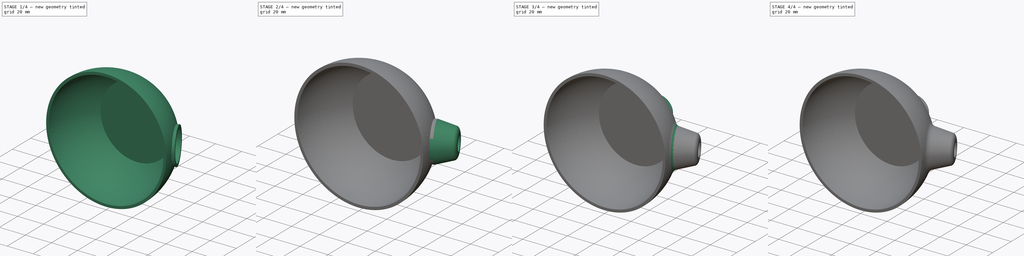
[diagram: build sequence overview — one tinted view per stage of 4, left to right]
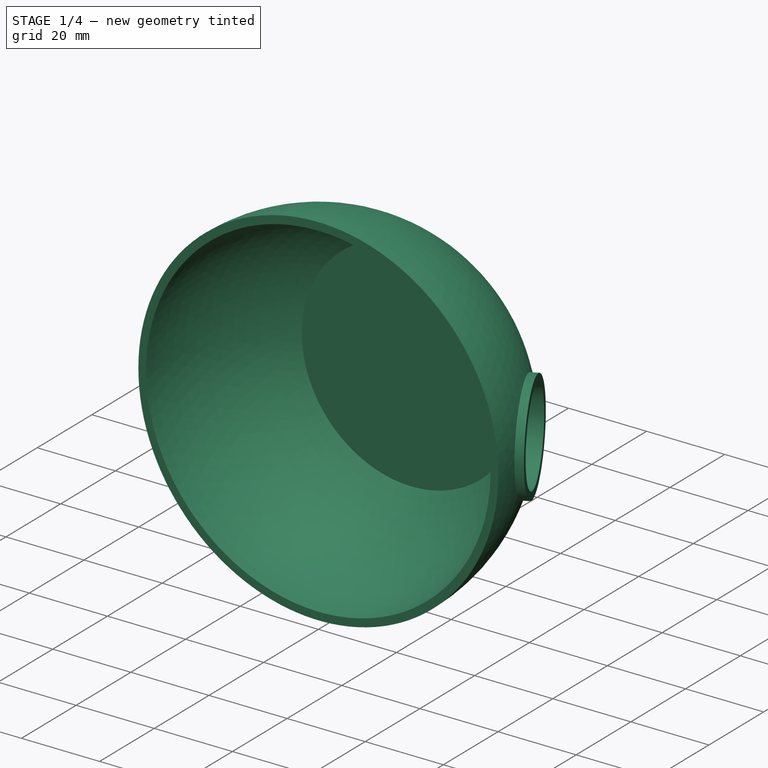
[diagram: stage 1 of 4 — iso view after this stage's code; geometry added in this stage tinted green]
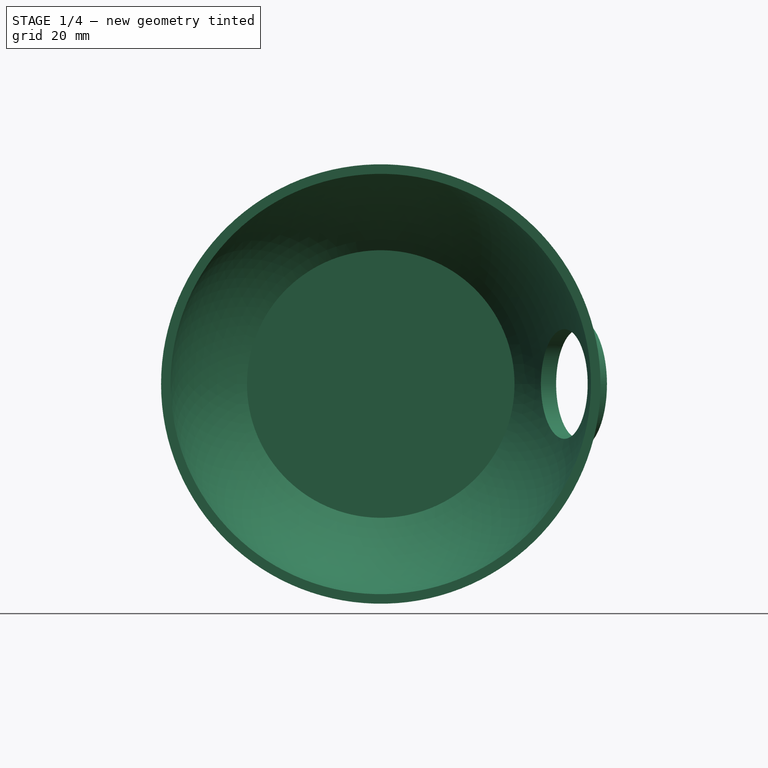
[diagram: stage 1 of 4 — front view after this stage's code; geometry added in this stage tinted green]
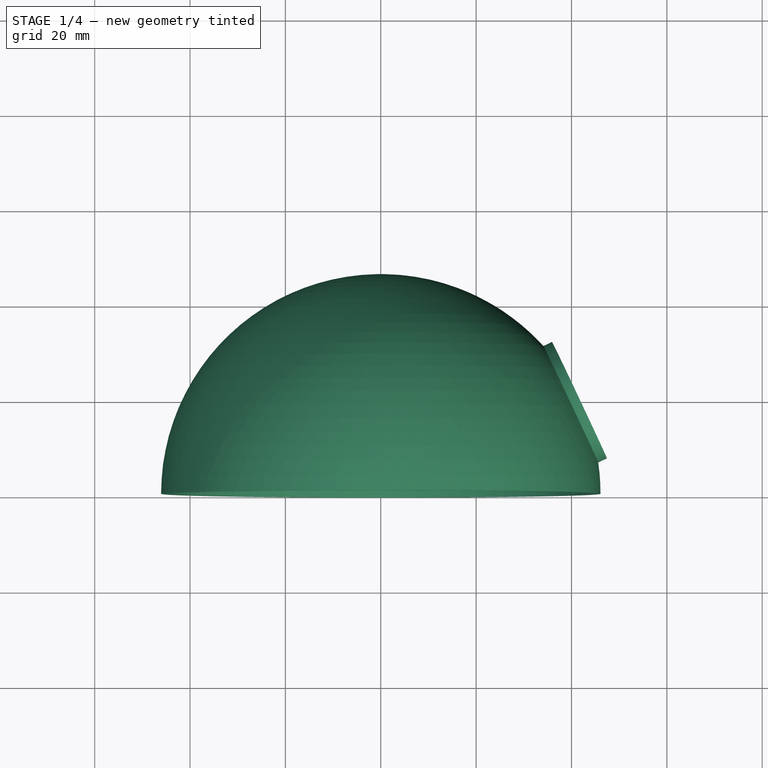
[diagram: stage 1 of 4 — top view after this stage's code; geometry added in this stage tinted green]
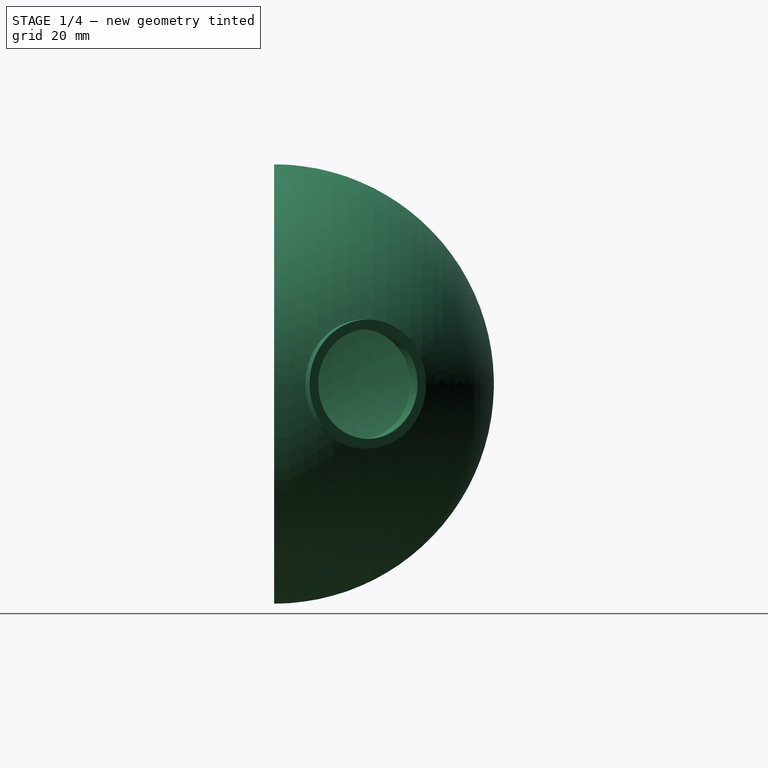
[diagram: stage 1 of 4 — right view after this stage's code; geometry added in this stage tinted green]
FCSTD DOCUMENT  (FreeCAD 0.19R24291 (Git))
Label: Vacuum_holder2
License: All rights reserved
LicenseURL: http://en.wikipedia.org/wiki/All_rights_reserved
objects: Sketcher::SketchObject×11, PartDesign::Plane×4, PartDesign::Pocket×4, PartDesign::Fillet×4, PartDesign::Revolution×3, PartDesign::Line×2, PartDesign::Pad×2, PartDesign::Point×1, PartDesign::Body×1
note: 45 computed .brp shape members not serialized (recipe doc carries the construction recipe); baked Part::Feature solids carry a one-line shape summary decoded from their .brp

FEATURE [Sketcher::SketchObject] Sketch
  FullyConstrained = true
  MapMode = 5
  Support = -> [XY_Plane]
  sketch-geometry (6):
    g0: ArcOfCircle CenterX=0 CenterY=0 CenterZ=0 NormalX=0 NormalY=0 NormalZ=1 AngleXU=0 Radius=44.08 StartAngle=0 EndAngle=0.88092
    g1: ArcOfCircle CenterX=0 CenterY=0 CenterZ=0 NormalX=0 NormalY=0 NormalZ=1 AngleXU=0 Radius=46.08 StartAngle=0 EndAngle=1.54909
    g2: LineSegment StartX=1 StartY=46.0691 StartZ=0 EndX=0 EndY=46.0691 EndZ=0
    g3: LineSegment StartX=28.0543 StartY=34 StartZ=0 EndX=0 EndY=34 EndZ=0
    g4: LineSegment StartX=0 StartY=34 StartZ=0 EndX=0 EndY=46.0691 EndZ=0
    g5: LineSegment StartX=44.08 StartY=0 StartZ=0 EndX=46.08 EndY=0 EndZ=0
  constraints (18):
    c: Coincident(g0,g-1)
    c: PointOnObject(g0,g-1)
    c: Coincident(g1,g0)
    c: PointOnObject(g1,g-1)
    c: Coincident(g2,g1)
    c: PointOnObject(g2,g-2)
    c: Horizontal(g2)
    c: Coincident(g3,g0)
    c: PointOnObject(g3,g-2)
    c: Horizontal(g3)
    c: Coincident(g4,g2)
    c: Coincident(g5,g0)
    c: Coincident(g5,g1)
    c: Diameter(g0) = 88.16
    c: Distance(g5) = 2
    c: Coincident(g4,g3)
    c: Distance(g3,g0) = 34
    c: Distance(g2) = 1
FEATURE [PartDesign::Revolution] Revolution
  Angle = 360
  Axis = (0,1,0)
  Base = (0,0,0)
  Profile = -> Sketch
  ReferenceAxis = -> Sketch [V_Axis]
  Reversed = true
FEATURE [PartDesign::Line] DatumLine
  AttacherType = Attacher::AttachEngineLine
  Length = 20
  MapMode = 43
  Placement = pos=(7.1e-15,-1.07e-14,0) rot=(0.409171,0.645205,0.645205;2.36482rad)
  ResizeMode = 0
  Support = -> [Revolution]
FEATURE [PartDesign::Point] DatumPoint
  AttacherType = Attacher::AttachEnginePoint
  MapMode = 40
  Placement = pos=(41.6819,19.6465,9e-15) rot=(0,0,1;0rad)
  Support = -> [DatumLine,Revolution]
FEATURE [PartDesign::Plane] DatumPlane
  Length = 123.023
  MapMode = 7
  Placement = pos=(41.6819,19.6465,9e-15) rot=(0.409171,0.645205,0.645205;2.36482rad)
  ResizeMode = 0
  Support = -> [DatumLine,DatumPoint]
  Width = 111.59
FEATURE [Sketcher::SketchObject] Sketch001
  FullyConstrained = true
  MapMode = 5
  Placement = pos=(41.6819,19.6465,9e-15) rot=(0.409171,0.645205,0.645205;2.36482rad)
  Support = -> [DatumPlane]
  sketch-geometry (2):
    g0: Circle CenterX=0 CenterY=0 CenterZ=0 NormalX=0 NormalY=0 NormalZ=1 AngleXU=0 Radius=11.5
    g1: Circle CenterX=0 CenterY=0 CenterZ=0 NormalX=0 NormalY=0 NormalZ=1 AngleXU=0 Radius=13.5
  constraints (4):
    c: Coincident(g0,g-1)
    c: Diameter(g0) = 23
    c: Coincident(g1,g0)
    c: Diameter(g1) = 27
FEATURE [Sketcher::SketchObject] Sketch002
  FullyConstrained = true
  MapMode = 5
  Placement = pos=(41.6819,19.6465,9e-15) rot=(0.409171,0.645205,0.645205;2.36482rad)
  Support = -> [DatumPlane]
  sketch-geometry (1):
    g0: Circle CenterX=0 CenterY=0 CenterZ=0 NormalX=0 NormalY=0 NormalZ=1 AngleXU=0 Radius=11.5
  constraints (2):
    c: Coincident(g0,g-1)
    c: Diameter(g0) = 23
FEATURE [PartDesign::Pocket] Pocket
  BaseFeature = -> Revolution
  Length = 0
  Length2 = 100
  Profile = -> Sketch002
  Type = 3
  UpToFace = -> Revolution [Face1]
FEATURE [PartDesign::Pad] Pad
  BaseFeature = -> Pocket
  Direction = (1,1,1)
  Length = 10
  Length2 = 100
  Profile = -> Sketch001
  Type = 3
  UpToFace = -> Pocket [Face5]
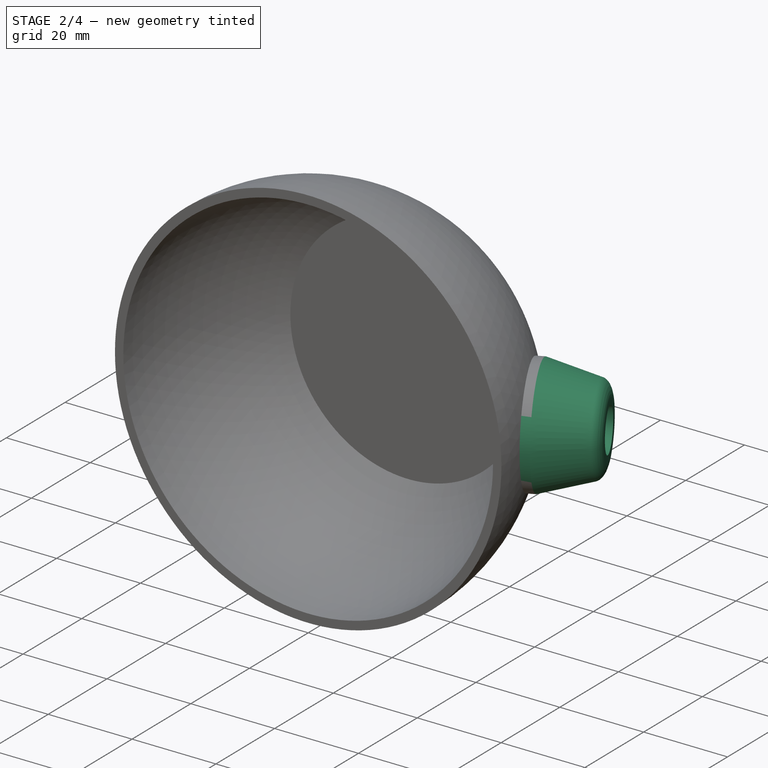
[diagram: stage 2 of 4 — iso view after this stage's code; geometry added in this stage tinted green]
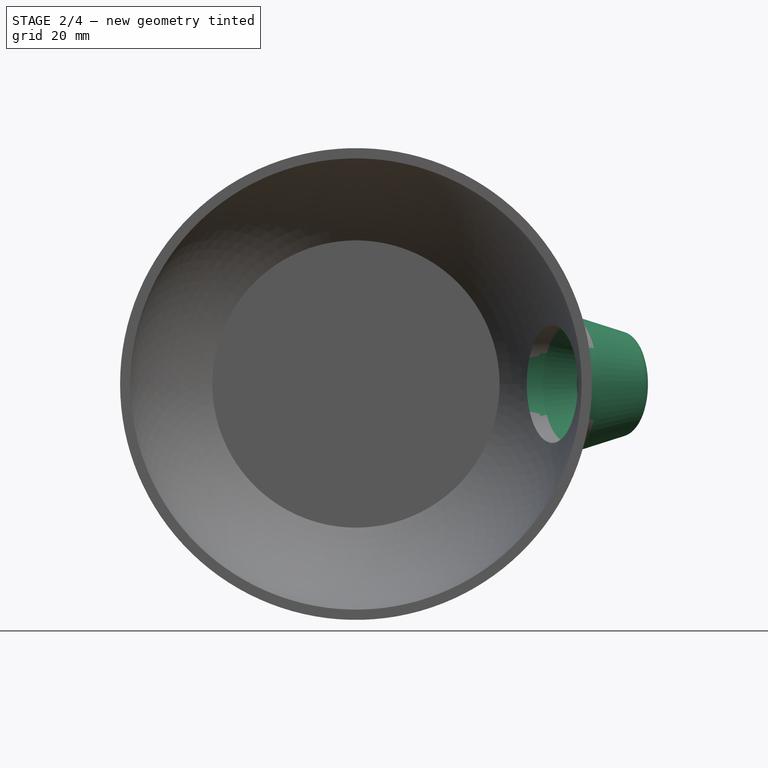
[diagram: stage 2 of 4 — front view after this stage's code; geometry added in this stage tinted green]
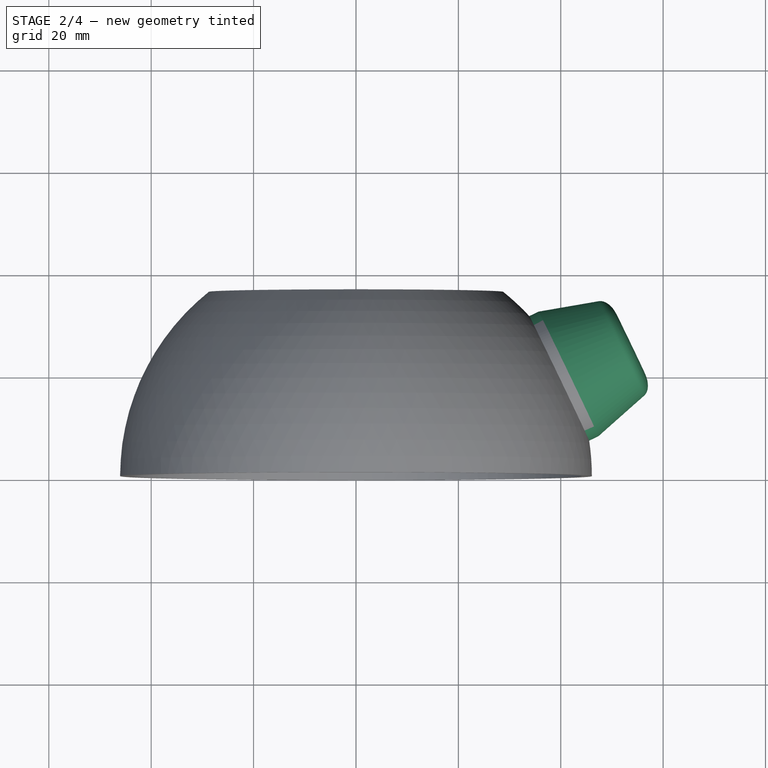
[diagram: stage 2 of 4 — top view after this stage's code; geometry added in this stage tinted green]
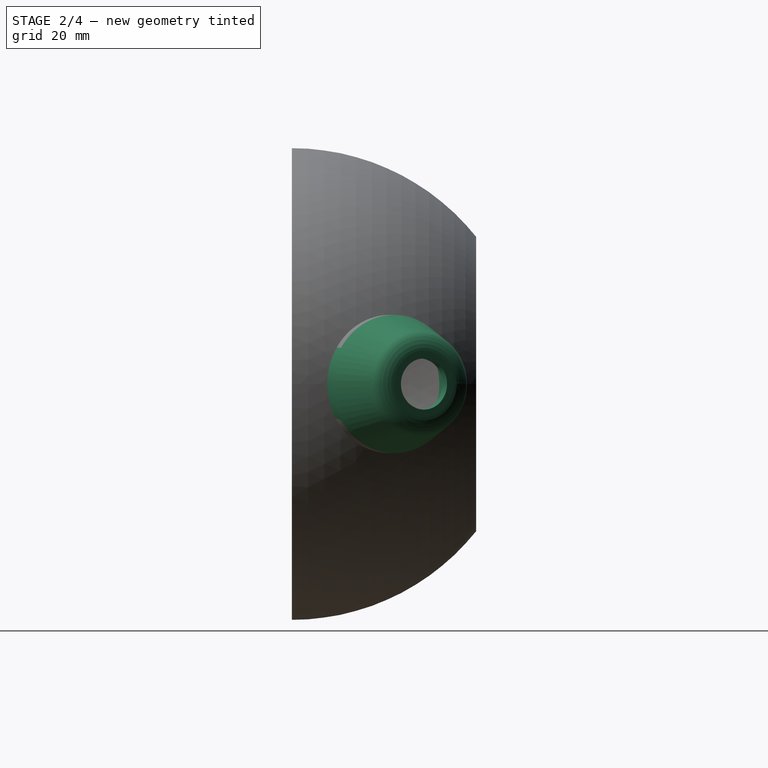
[diagram: stage 2 of 4 — right view after this stage's code; geometry added in this stage tinted green]
FEATURE [Sketcher::SketchObject] Sketch003
  ExternalGeometry = -> [Pad,DatumLine]
  FullyConstrained = false
  MapMode = 5
  Support = -> [XY_Plane]
  sketch-geometry (22):
    g0: LineSegment StartX=46.08 StartY=0 StartZ=0 EndX=30.8057 EndY=43.66 EndZ=0
    g1: LineSegment StartX=30.8057 StartY=43.66 StartZ=0 EndX=37.562 EndY=36.7555 EndZ=0
    g2: LineSegment StartX=37.562 StartY=36.7555 StartZ=0 EndX=42.5651 EndY=41.6512 EndZ=0
    g3: LineSegment StartX=42.5651 StartY=41.6512 StartZ=0 EndX=38.0191 EndY=46.297 EndZ=0
    g4: LineSegment StartX=11.5411 StartY=70.4964 StartZ=0 EndX=22.0482 EndY=40.4629 EndZ=0
    g5: LineSegment StartX=43.6354 StartY=30.5818 StartZ=0 EndX=45.9452 EndY=38.9284 EndZ=0
    g6: LineSegment StartX=45.9452 StartY=38.9284 StartZ=0 EndX=39.8718 EndY=45.102 EndZ=0
    g7: LineSegment StartX=39.8718 StartY=45.102 StartZ=0 EndX=31.4885 EndY=42.9291 EndZ=0
    g8: LineSegment StartX=31.4885 StartY=42.9291 StartZ=0 EndX=29.1787 EndY=34.5825 EndZ=0
    g9: LineSegment StartX=29.1787 StartY=34.5825 StartZ=0 EndX=35.2522 EndY=28.4089 EndZ=0
    g10: LineSegment StartX=35.2522 StartY=28.4089 StartZ=0 EndX=43.6354 EndY=30.5818 EndZ=0
    g11: Circle CenterX=37.562 CenterY=36.7555 CenterZ=0 NormalX=0 NormalY=0 NormalZ=1 AngleXU=0 Radius=8.66025
    g12: GeomPoint X=31.505 Y=42.9453 Z=0
    g13: LineSegment StartX=46.08 StartY=0 StartZ=0 EndX=22.0482 EndY=40.4629 EndZ=0
    g14: LineSegment StartX=42.5651 StartY=41.6512 StartZ=0 EndX=41.1357 EndY=40.2524 EndZ=0
    g15: LineSegment StartX=41.1357 StartY=40.2524 StartZ=0 EndX=37.6387 EndY=43.8261 EndZ=0
    g16: ArcOfEllipse CenterX=36.7272 CenterY=45.0329 CenterZ=0 NormalX=0 NormalY=0 NormalZ=1 MajorRadius=36.0197 MinorRadius=1.80745 AngleXU=2.34534 StartAngle=4.71239 EndAngle=6.38992
    g17: LineSegment StartX=11.5353 StartY=70.7776 StartZ=0 EndX=61.9191 EndY=19.2883 EndZ=0
    g18: LineSegment StartX=35.4354 StartY=43.7688 StartZ=0 EndX=38.0191 EndY=46.297 EndZ=0
    g19: GeomPoint X=11.5671 Y=70.7451 Z=0
    g20: GeomPoint X=61.8873 Y=19.3207 Z=0
    g21: LineSegment StartX=26.2671 StartY=34 StartZ=0 EndX=38.4576 EndY=21.5421 EndZ=0
  constraints (49):
    c: Coincident(g0,g-3)
    c: Coincident(g1,g0)
    c: PointOnObject(g1,g-5)
    c: PointOnObject(g2,g-5)
    c: Coincident(g4,g-4)
    c: Coincident(g1,g2)
    c: Distance(g2) = 7
    c: Coincident(g3,g2)
    c: Perpendicular(g2,g1)
    c: Perpendicular(g2,g3)
    c: Coincident(g5,g6)
    c: Coincident(g6,g7)
    c: Coincident(g7,g8)
    c: Coincident(g8,g9)
    c: Coincident(g9,g10)
    c: Coincident(g10,g5)
    c: Equal(g5, g6-g10) x5
    c: PointOnObject(g5,g11)
    c: PointOnObject(g6,g11)
    c: PointOnObject(g7,g11)
    c: PointOnObject(g8,g11)
    c: PointOnObject(g9,g11)
    c: PointOnObject(g10,g11)
    c: Coincident(g11,g1)
    c: Distance(g5,g8) = 15
    c: PointOnObject(g12,g11)
    c: PointOnObject(g12,g1)
    c: Distance(g0,g12) = 1
    c: Parallel(g0,g4)
    c: Distance(g3) = 6.5
    c: Coincident(g13,g0)
    c: Coincident(g13,g4)
    c: Distance(g0,g4) = 9.32195
    c: Coincident(g14,g2)
    c: PointOnObject(g14,g2)
    c: Distance(g2,g14) = 2
    c: Coincident(g15,g14)
    c: Perpendicular(g2,g15)
    c: Distance(g15) = 5
    c: PointOnObject(g4,g15)
    c: InternalAlignment(g17-g20 -> g16) x4
    c: Coincident(g16,g4)
    c: Coincident(g16,g3)
    c: Tangent(g4,g16)
    c: Tangent(g16,g3)
    c: Parallel(g17,g15)
    c: Coincident(g21,g-6)
    c: Coincident(g21,g-7)
    c: Distance(g14,g21) = 15
FEATURE [PartDesign::Revolution] Revolution001
  Angle = 360
  Axis = (0.714738,0.699392,0)
  Base = (0,-7.1e-15,0)
  BaseFeature = -> Pad
  Profile = -> Sketch003
  ReferenceAxis = -> DatumLine
  Reversed = true
FEATURE [Sketcher::SketchObject] Sketch004
  FullyConstrained = true
  MapMode = 5
  Placement = pos=(47.3596,22.78,0) rot=(0.747342,-0.469829,-0.469829;1.858rad)
  Support = -> [Revolution001]
  sketch-geometry (7):
    g0: LineSegment StartX=4.33013 StartY=7.5 StartZ=0 EndX=-4.33013 EndY=7.5 EndZ=0
    g1: LineSegment StartX=-4.33013 StartY=7.5 StartZ=0 EndX=-8.66025 EndY=-9e-16 EndZ=0
    g2: LineSegment StartX=-8.66025 StartY=-9e-16 StartZ=0 EndX=-4.33013 EndY=-7.5 EndZ=0
    g3: LineSegment StartX=-4.33013 StartY=-7.5 StartZ=0 EndX=4.33013 EndY=-7.5 EndZ=0
    g4: LineSegment StartX=4.33013 StartY=-7.5 StartZ=0 EndX=8.66025 EndY=1.8e-15 EndZ=0
    g5: LineSegment StartX=8.66025 StartY=1.8e-15 StartZ=0 EndX=4.33013 EndY=7.5 EndZ=0
    g6: Circle CenterX=0 CenterY=0 CenterZ=0 NormalX=0 NormalY=0 NormalZ=1 AngleXU=0 Radius=8.66025
  constraints (16):
    c: Coincident(g0,g1)
    c: Coincident(g1,g2)
    c: Coincident(g2,g3)
    c: Coincident(g3,g4)
    c: Coincident(g4,g5)
    c: Coincident(g5,g0)
    c: Equal(g0, g1-g5) x5
    c: PointOnObject(g0,g6)
    c: PointOnObject(g1,g6)
    c: PointOnObject(g2,g6)
    c: PointOnObject(g3,g6)
    c: PointOnObject(g4,g6)
    c: PointOnObject(g5,g6)
    c: Coincident(g6,g-1)
    c: Horizontal(g0)
    c: Distance(g3,g0) = 15
FEATURE [PartDesign::Pocket] Pocket001
  BaseFeature = -> Revolution001
  Length = 5
  Length2 = 100
  Profile = -> Sketch004
  Type = 0
FEATURE [Sketcher::SketchObject] Sketch005
  FullyConstrained = true
  MapMode = 5
  Placement = pos=(51.8655,24.9473,-1e-16) rot=(0.747342,-0.469829,-0.469829;1.858rad)
  Support = -> [Pocket001]
  sketch-geometry (1):
    g0: Circle CenterX=0 CenterY=0 CenterZ=0 NormalX=0 NormalY=0 NormalZ=1 AngleXU=0 Radius=5
  constraints (2):
    c: Coincident(g0,g-1)
    c: Diameter(g0) = 10
FEATURE [PartDesign::Pocket] Pocket002
  BaseFeature = -> Pocket001
  Length = 0
  Length2 = 100
  Profile = -> Sketch005
  Type = 3
  UpToFace = -> Pocket001 [Face18]
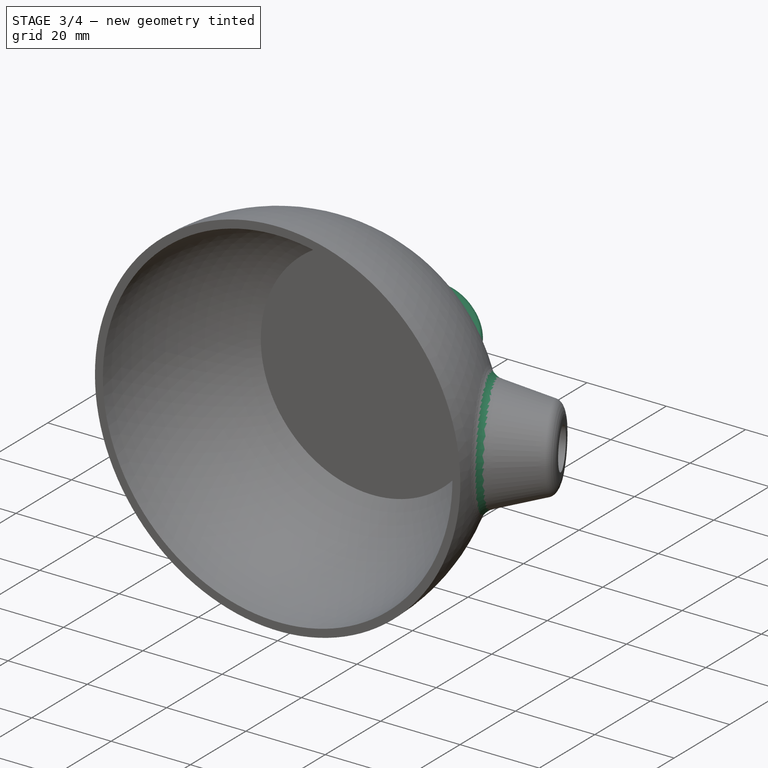
[diagram: stage 3 of 4 — iso view after this stage's code; geometry added in this stage tinted green]
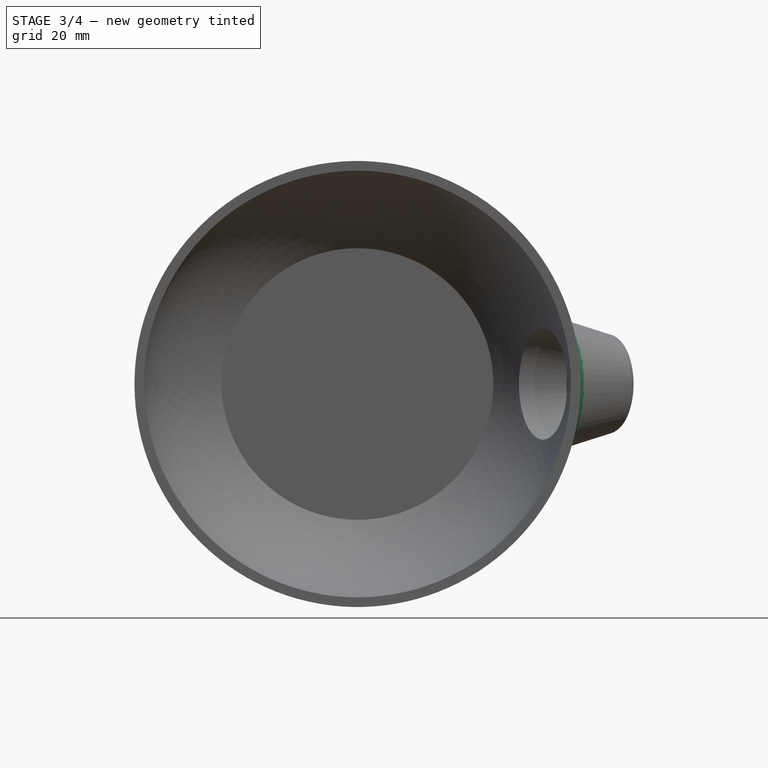
[diagram: stage 3 of 4 — front view after this stage's code; geometry added in this stage tinted green]
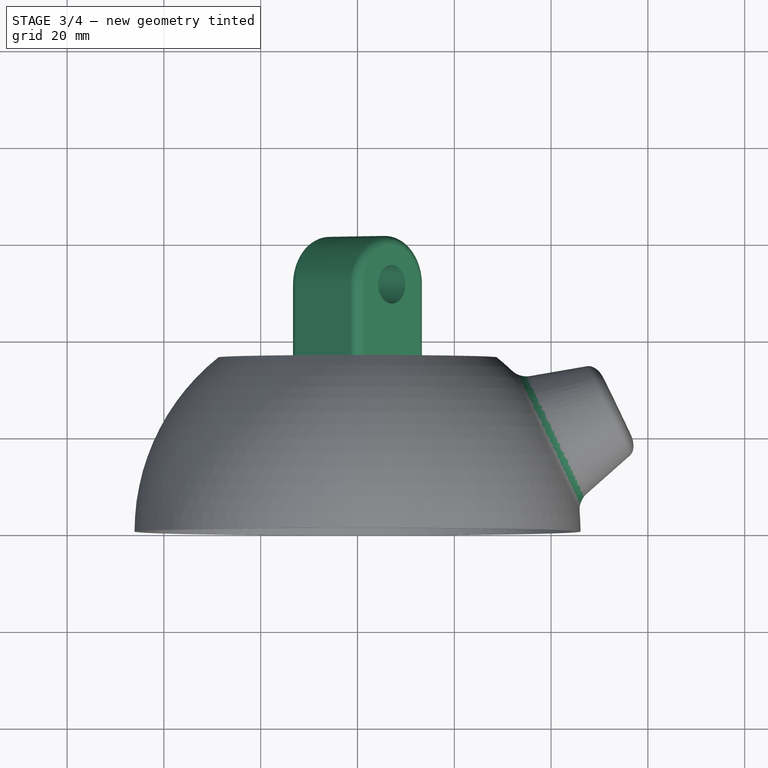
[diagram: stage 3 of 4 — top view after this stage's code; geometry added in this stage tinted green]
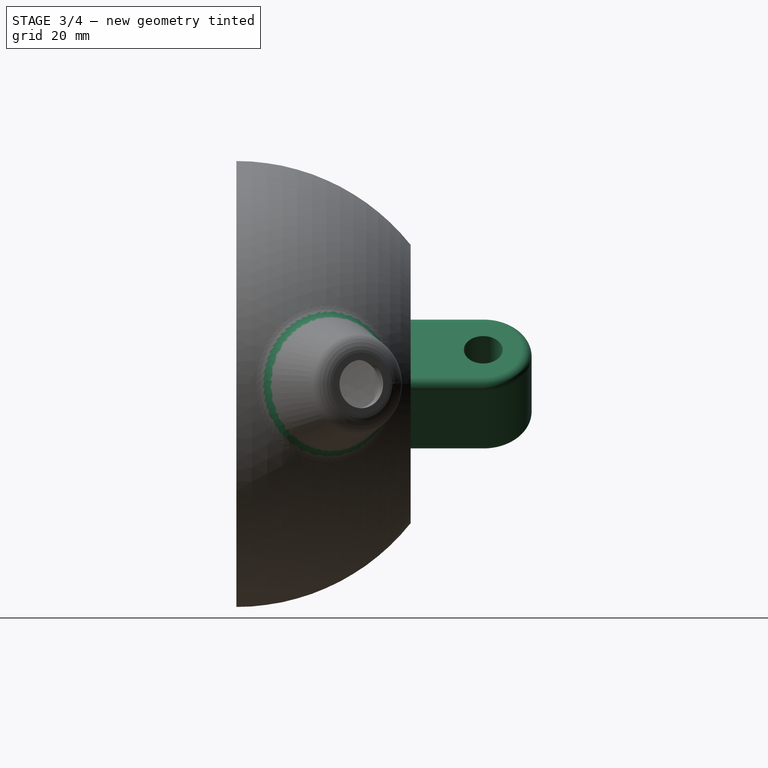
[diagram: stage 3 of 4 — right view after this stage's code; geometry added in this stage tinted green]
FEATURE [PartDesign::Plane] DatumPlane001
  AttachmentOffset = pos=(0,0,0) rot=(0.357407,0.862856,-0.357407;1.71777rad)
  Length = 90.3032
  MapMode = 5
  Placement = pos=(0,36,0) rot=(-0.678598,0.678598,0.281085;3.68962rad)
  ResizeMode = 0
  Support = -> [Pocket002]
  Width = 149.371
FEATURE [Sketcher::SketchObject] Sketch006
  FullyConstrained = true
  MapMode = 5
  Placement = pos=(0,36,0) rot=(-0.678598,0.678598,0.281085;3.68962rad)
  Support = -> [DatumPlane001]
  sketch-geometry (5):
    g0: Circle CenterX=-15 CenterY=0 CenterZ=0 NormalX=0 NormalY=0 NormalZ=1 AngleXU=0 Radius=4
    g1: ArcOfCircle CenterX=-15 CenterY=0 CenterZ=0 NormalX=0 NormalY=0 NormalZ=1 AngleXU=0 Radius=10 StartAngle=1.5708 EndAngle=4.71238
    g2: LineSegment StartX=-15 StartY=-10 StartZ=0 EndX=0 EndY=-10 EndZ=0
    g3: LineSegment StartX=-15 StartY=10 StartZ=0 EndX=0 EndY=10 EndZ=0
    g4: LineSegment StartX=0 StartY=-10 StartZ=0 EndX=0 EndY=10 EndZ=0
  constraints (15):
    c: PointOnObject(g0,g-1)
    c: Diameter(g0) = 8
    c: Distance(g-1,g0) = 15
    c: Coincident(g1,g0)
    c: Coincident(g2,g1)
    c: PointOnObject(g2,g-2)
    c: Horizontal(g2)
    c: Coincident(g3,g1)
    c: PointOnObject(g3,g-2)
    c: Horizontal(g3)
    c: Tangent(g3,g1)
    c: Tangent(g2,g1)
    c: Diameter(g1) = 20
    c: Coincident(g4,g2)
    c: Coincident(g4,g3)
FEATURE [PartDesign::Pad] Pad001
  BaseFeature = -> Pocket002
  Direction = (1,1,1)
  Length = 10
  Length2 = 10
  Profile = -> Sketch006
  Type = 4
FEATURE [PartDesign::Plane] DatumPlane002
  Length = 61.5526
  MapMode = 9
  Placement = pos=(43.3328,8.08192,2e-15) rot=(-0.216997,0.951748,0.216997;1.62023rad)
  ResizeMode = 0
  Width = 78.2844
FEATURE [PartDesign::Line] DatumLine001
  AttacherType = Attacher::AttachEngineLine
  Length = 20
  MapMode = 29
  Placement = pos=(38.3479,18.4454,-4e-16) rot=(0.951748,0.216997,0.216997;1.62023rad)
  ResizeMode = 0
  Support = -> [Pad001]
FEATURE [Sketcher::SketchObject] Sketch007
  ExternalGeometry = -> [Pad001]
  FullyConstrained = true
  MapMode = 5
  Placement = pos=(-7.07107,-3e-16,-7.07107) rot=(0.92388,0,-0.382683;3.14159rad)
  Support = -> [Pad001]
  sketch-geometry (7):
    g0: LineSegment StartX=3.75278 StartY=-44.5 StartZ=0 EndX=-3.75278 EndY=-44.5 EndZ=0
    g1: LineSegment StartX=-3.75278 StartY=-44.5 StartZ=0 EndX=-7.50555 EndY=-51 EndZ=0
    g2: LineSegment StartX=-7.50555 StartY=-51 StartZ=0 EndX=-3.75278 EndY=-57.5 EndZ=0
    g3: LineSegment StartX=-3.75278 StartY=-57.5 StartZ=0 EndX=3.75278 EndY=-57.5 EndZ=0
    g4: LineSegment StartX=3.75278 StartY=-57.5 StartZ=0 EndX=7.50555 EndY=-51 EndZ=0
    g5: LineSegment StartX=7.50555 StartY=-51 StartZ=0 EndX=3.75278 EndY=-44.5 EndZ=0
    g6: Circle CenterX=-8.69e-14 CenterY=-51 CenterZ=0 NormalX=0 NormalY=0 NormalZ=1 AngleXU=0 Radius=7.50555
  constraints (16):
    c: Coincident(g0,g1)
    c: Coincident(g1,g2)
    c: Coincident(g2,g3)
    c: Coincident(g3,g4)
    c: Coincident(g4,g5)
    c: Coincident(g5,g0)
    c: Equal(g0, g1-g5) x5
    c: PointOnObject(g0,g6)
    c: PointOnObject(g1,g6)
    c: PointOnObject(g2,g6)
    c: PointOnObject(g3,g6)
    c: PointOnObject(g4,g6)
    c: PointOnObject(g5,g6)
    c: Coincident(g6,g-3)
    c: Distance(g3,g0) = 13
    c: Horizontal(g3)
FEATURE [PartDesign::Pocket] Pocket003
  BaseFeature = -> Pad001
  Length = 2
  Length2 = 100
  Profile = -> Sketch007
  Type = 0
FEATURE [Sketcher::SketchObject] Sketch008
  ExternalGeometry = -> [Pocket003]
  FullyConstrained = true
  MapMode = 5
  Placement = pos=(0,36,0) rot=(-0.678598,0.678598,0.281085;3.68962rad)
  Support = -> [DatumPlane001]
  sketch-geometry (3):
    g0: ArcOfCircle CenterX=-4 CenterY=-14 CenterZ=0 NormalX=0 NormalY=0 NormalZ=1 AngleXU=0 Radius=4 StartAngle=5.23505e-07 EndAngle=1.5708
    g1: LineSegment StartX=0 StartY=-10 StartZ=0 EndX=-5.48e-13 EndY=-14 EndZ=0
    g2: LineSegment StartX=0 StartY=-10 StartZ=0 EndX=-4 EndY=-10 EndZ=0
  constraints (9):
    c: PointOnObject(g0,g-2)
    c: Coincident(g1,g-3)
    c: Coincident(g1,g0)
    c: Coincident(g2,g1)
    c: Coincident(g2,g0)
    c: Horizontal(g2)
    c: Tangent(g2,g0)
    c: Tangent(g0,g1)
    c: Diameter(g0) = 8
FEATURE [PartDesign::Fillet] Fillet
  Base = -> Pocket003 [Edge35,Edge36,Edge41,Edge39,Edge40,Edge34]
  BaseFeature = -> Pocket003
  Radius = 2
  SupportTransform = false
FEATURE [Sketcher::SketchObject] Sketch009
  ExternalGeometry = -> [Fillet]
  FullyConstrained = false
  MapMode = 5
  Placement = pos=(0,36,0) rot=(0,0.707107,0.707107;3.14159rad)
  Support = -> [Fillet]
  sketch-geometry (13):
    g0: LineSegment StartX=-8.48527 StartY=-8.4853 StartZ=0 EndX=-14.1421 EndY=-2.82844 EndZ=0
    g1: LineSegment StartX=-14.1421 StartY=2.82843 StartZ=0 EndX=-2.82843 EndY=14.1421 EndZ=0
    g2: LineSegment StartX=2.82843 StartY=14.1421 StartZ=0 EndX=14.1421 EndY=2.82843 EndZ=0
    g3: LineSegment StartX=14.1421 StartY=-2.82843 StartZ=0 EndX=2.82843 EndY=-14.1421 EndZ=0
    g4: LineSegment StartX=-2.82841 StartY=-14.1421 StartZ=0 EndX=-8.48527 EndY=-8.4853 EndZ=0
    g5: LineSegment StartX=-5.60641 StartY=8.53572 StartZ=0 EndX=-7.02062 EndY=9.94994 EndZ=0
    g6: LineSegment StartX=6.89087 StartY=7.25127 StartZ=0 EndX=8.30508 EndY=8.66548 EndZ=0
    g7: LineSegment StartX=8.44001 StartY=-5.70212 StartZ=0 EndX=9.85423 EndY=-7.11634 EndZ=0
    g8: LineSegment StartX=-2.50778 StartY=-11.6344 StartZ=0 EndX=-3.92199 EndY=-13.0486 EndZ=0
    g9: ArcOfCircle CenterX=5e-16 CenterY=11.3137 CenterZ=0 NormalX=0 NormalY=0 NormalZ=1 AngleXU=0 Radius=4 StartAngle=0.785398 EndAngle=2.35619
    g10: ArcOfCircle CenterX=11.3137 CenterY=5.1e-15 CenterZ=0 NormalX=0 NormalY=0 NormalZ=1 AngleXU=0 Radius=4 StartAngle=5.49779 EndAngle=7.06858
    g11: ArcOfCircle CenterX=1.7e-15 CenterY=-11.3137 CenterZ=0 NormalX=0 NormalY=0 NormalZ=1 AngleXU=0 Radius=4 StartAngle=3.927 EndAngle=5.49779
    g12: ArcOfCircle CenterX=-11.3137 CenterY=-5e-15 CenterZ=0 NormalX=0 NormalY=0 NormalZ=1 AngleXU=0 Radius=4 StartAngle=2.35619 EndAngle=3.927
  constraints (39):
    c: PointOnObject(g5,g-9)
    c: PointOnObject(g5,g1)
    c: PointOnObject(g6,g-7)
    c: PointOnObject(g6,g2)
    c: PointOnObject(g7,g-3)
    c: PointOnObject(g7,g3)
    c: PointOnObject(g8,g-5)
    c: PointOnObject(g8,g4)
    c: Coincident(g4,g0)
    c: Perpendicular(g-5,g8)
    c: Perpendicular(g-9,g5)
    c: Perpendicular(g1,g5)
    c: Perpendicular(g8,g0)
    c: Perpendicular(g4,g8)
    c: Perpendicular(g7,g-3)
    c: Perpendicular(g3,g7)
    c: Perpendicular(g-7,g6)
    c: Perpendicular(g6,g2)
    c: Coincident(g9,g-10)
    c: Coincident(g9,g1)
    c: Coincident(g9,g2)
    c: Coincident(g10,g-6)
    c: Coincident(g10,g2)
    c: Coincident(g10,g3)
    c: Coincident(g11,g-4)
    c: Coincident(g11,g3)
    c: Coincident(g11,g4)
    c: Coincident(g12,g-8)
    c: Coincident(g12,g0)
    c: Coincident(g12,g1)
    c: Equal(g8,g5)
    c: Equal(g5,g6)
    c: Equal(g6,g7)
    c: Distance(g7) = 2
    c: Tangent(g10,g2)
    c: Tangent(g12,g1)
    c: Tangent(g9,g1)
    c: Tangent(g11,g4)
    c: Equal(g4,g0)
FEATURE [Sketcher::SketchObject] Sketch010
  FullyConstrained = false
  MapMode = 5
  Support = -> [XY_Plane]
  sketch-geometry (3):
    g0: LineSegment StartX=33.8521 StartY=31.2634 StartZ=0 EndX=35.6742 EndY=32.1398 EndZ=0
    g1: ArcOfCircle CenterX=34.9158 CenterY=36.5204 CenterZ=0 NormalX=0 NormalY=0 NormalZ=1 AngleXU=0 Radius=4.44574 StartAngle=3.94945 EndAngle=4.88382
    g2: ArcOfCircle CenterX=0 CenterY=0 CenterZ=0 NormalX=0 NormalY=0 NormalZ=1 AngleXU=0 Radius=46.08 StartAngle=0.745663 EndAngle=0.807857
  constraints (5):
    c: Coincident(g1,g0)
    c: Coincident(g2,g-1)
    c: Coincident(g2,g0)
    c: Coincident(g2,g1)
    c: Tangent(g2,g1)
FEATURE [PartDesign::Revolution] Revolution002
  Angle = 360
  Axis = (0.901171,0.433464,0)
  Base = (0,-1.42e-14,0)
  BaseFeature = -> Fillet
  Profile = -> Sketch010
  ReferenceAxis = -> DatumLine
  Reversed = true
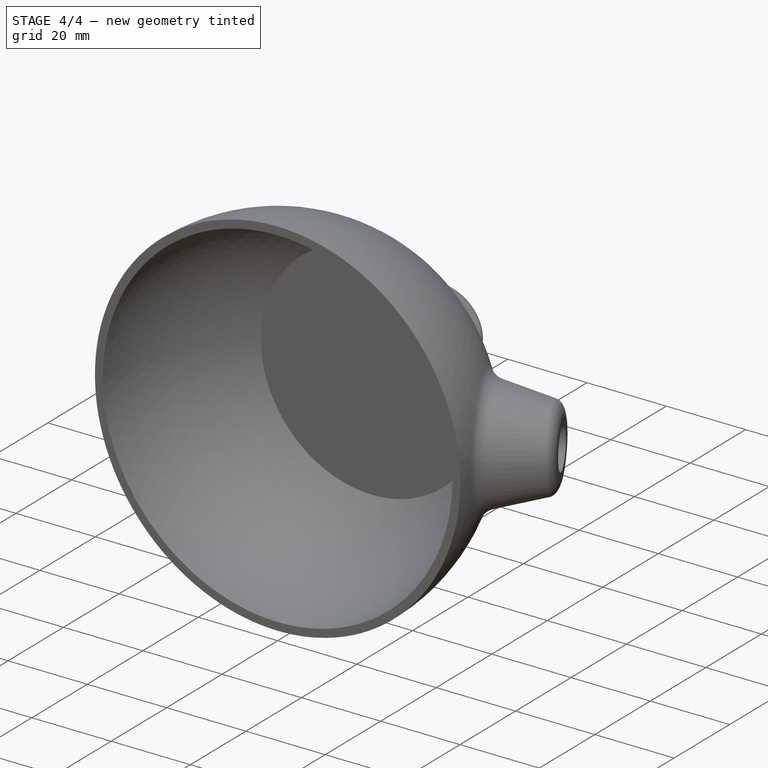
[diagram: stage 4 of 4 — iso view after this stage's code; geometry added in this stage tinted green]
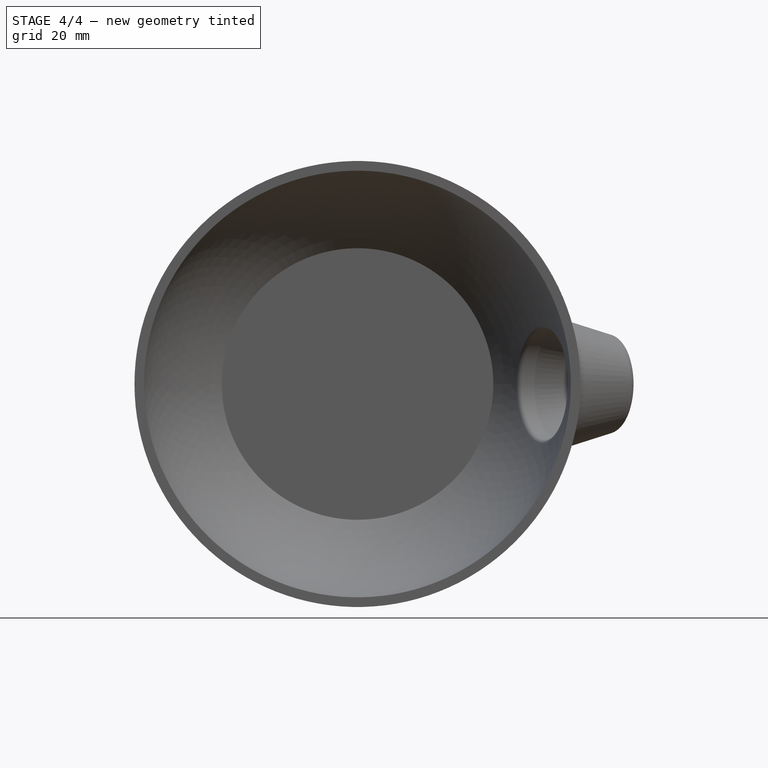
[diagram: stage 4 of 4 — front view after this stage's code; geometry added in this stage tinted green]
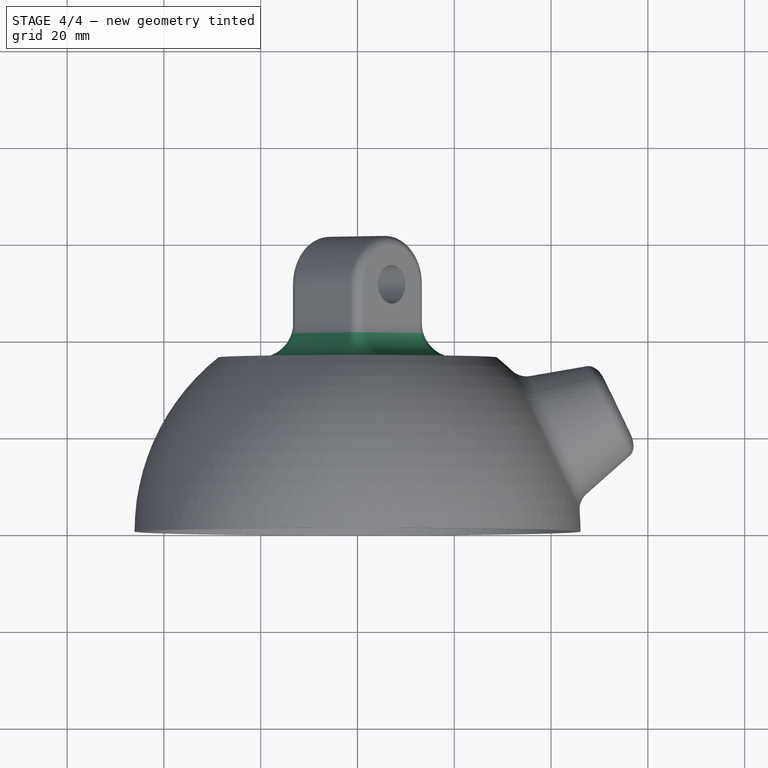
[diagram: stage 4 of 4 — top view after this stage's code; geometry added in this stage tinted green]
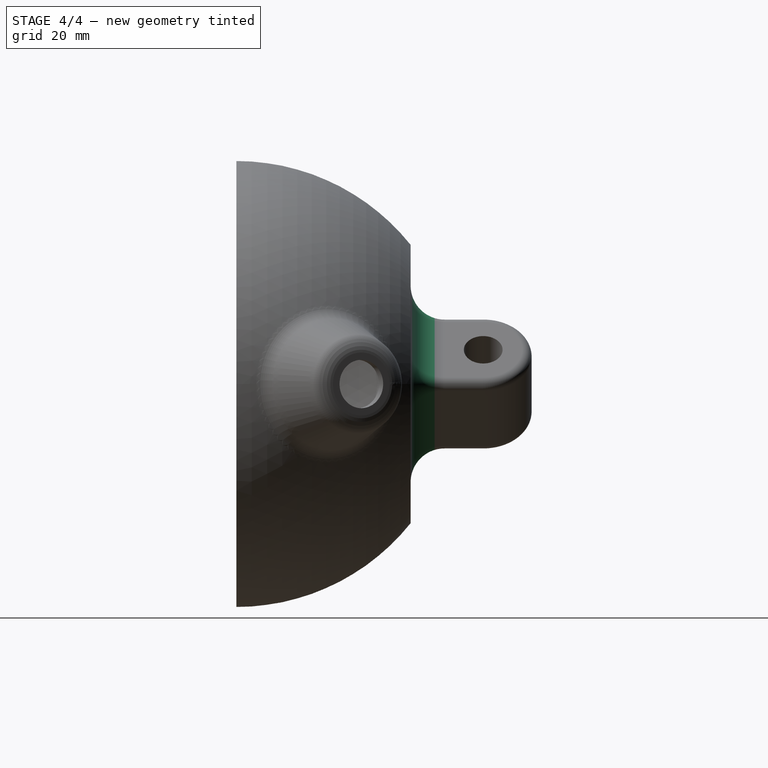
[diagram: stage 4 of 4 — right view after this stage's code; geometry added in this stage tinted green]
FEATURE [PartDesign::Plane] DatumPlane003
  AttachmentOffset = pos=(0,0,0) rot=(0,-1,0;1.5708rad)
  Length = 156.165
  MapMode = 7
  Placement = pos=(-1.76384,51,-12.3783) rot=(0.281085,-0.678598,-0.678598;3.68962rad)
  ResizeMode = 0
  Support = -> [Fillet]
  Width = 156.165
FEATURE [PartDesign::Fillet] Fillet001
  Base = -> Revolution002 [Edge4,Edge2,Edge1,Edge3,Edge6,Edge7,Edge8,Edge5]
  BaseFeature = -> Revolution002
  Radius = 7
  Refine = true
  SupportTransform = false
FEATURE [PartDesign::Fillet] Fillet002
  Base = -> Fillet001 [Edge91]
  BaseFeature = -> Fillet001
  Radius = 1
  Refine = true
  SupportTransform = false
FEATURE [PartDesign::Fillet] Fillet003
  Base = -> Fillet002 [Edge20]
  BaseFeature = -> Fillet002
  Radius = 1
  Refine = true
  SupportTransform = false
FEATURE [PartDesign::Body] Body
  Group = -> [Sketch,Revolution,DatumLine,DatumPoint,DatumPlane,Sketch001,Sketch002,Pocket,Pad,Sketch003,Revolution001,Sketch004,Pocket001,Sketch005,Pocket002,DatumPlane001,Sketch006,Pad001,DatumPlane002,DatumLine001,Sketch007,Pocket003,Sketch008,Fillet,Sketch009,Sketch010,Revolution002,DatumPlane003,Fillet001,Fillet002,Fillet003]
  Origin = -> Origin
  Tip = -> Fillet003
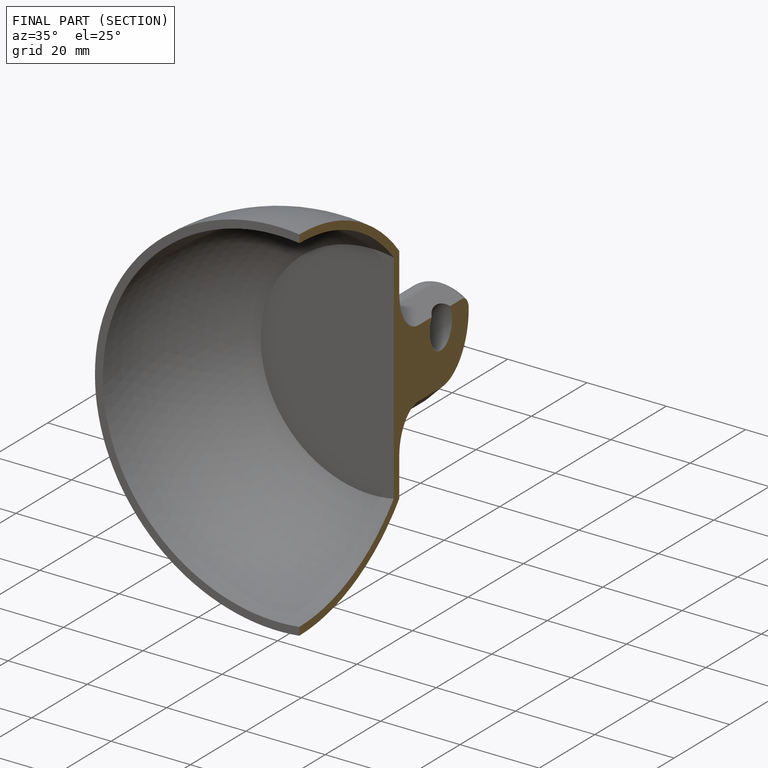
[diagram: finished part — half-section view (interior)]
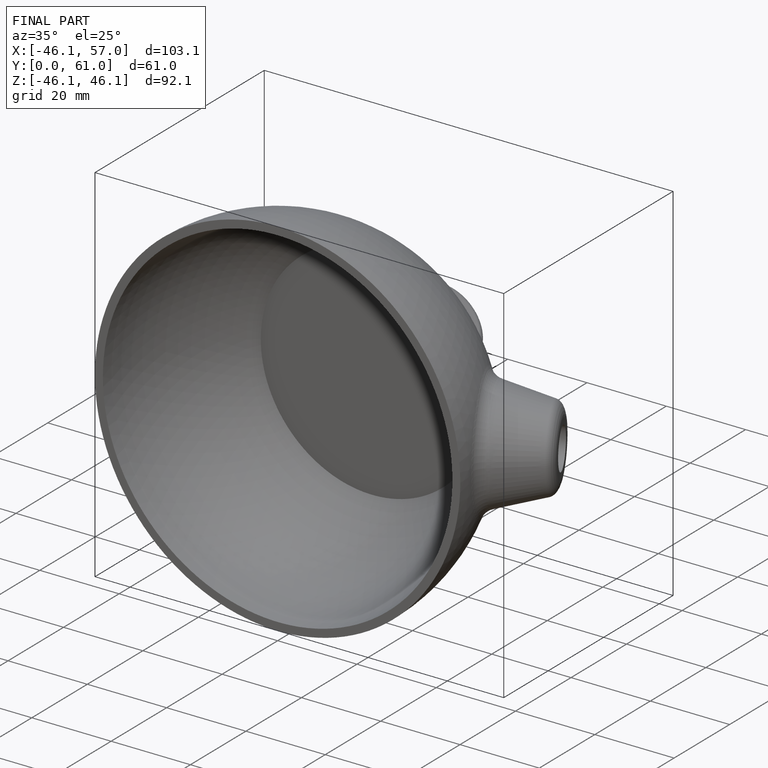
[diagram: finished part — iso view with bounding-box wireframe]
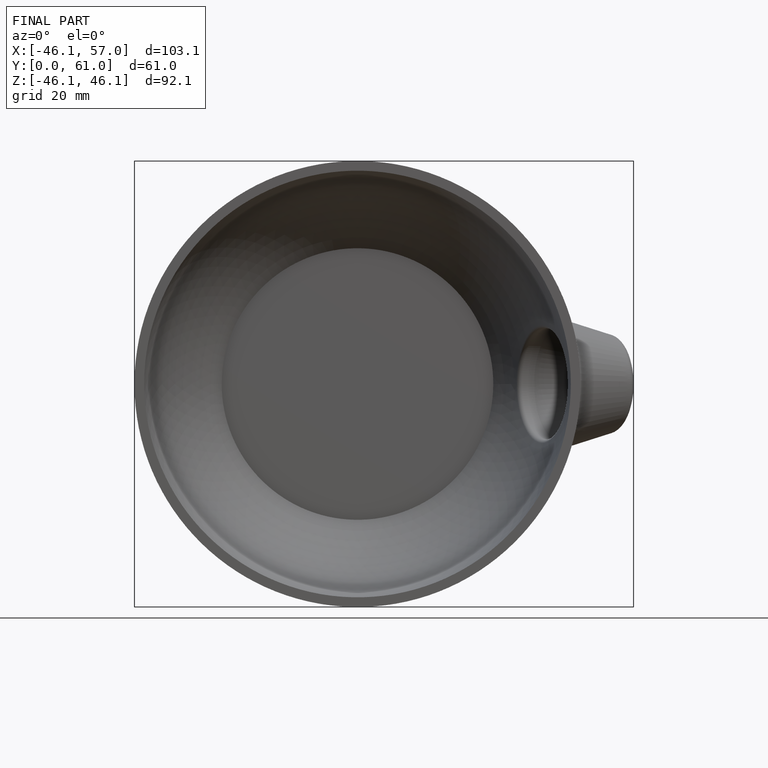
[diagram: finished part — front view with bounding-box wireframe]
